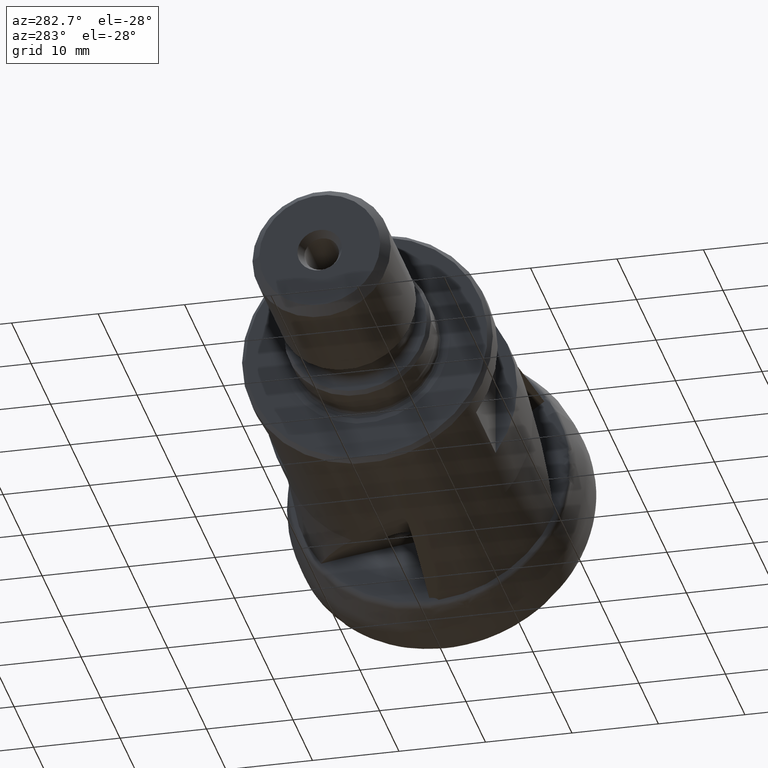
[diagram: clean part render]
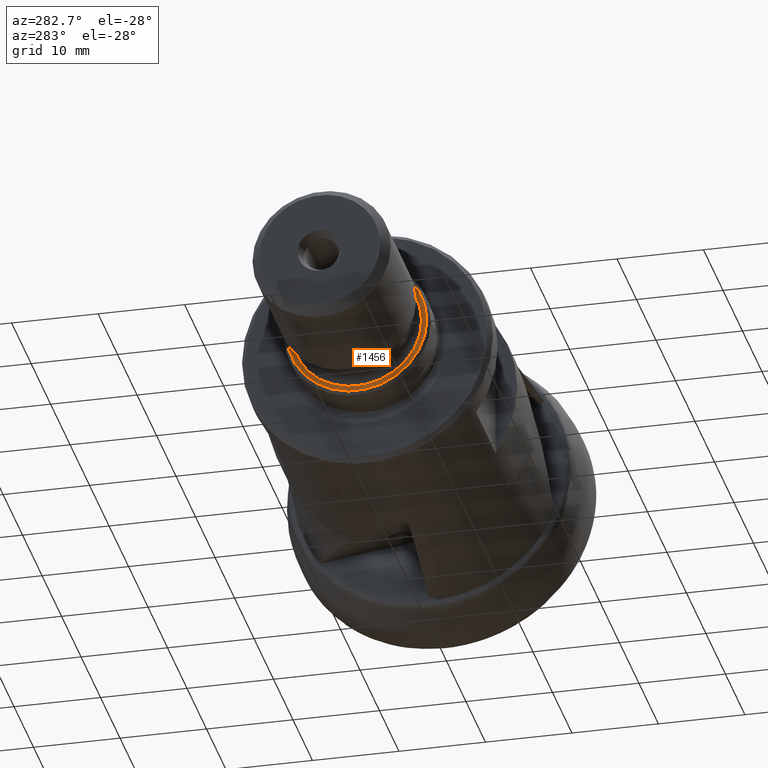
[diagram: same view with one face highlighted and labeled with its STEP entity id]
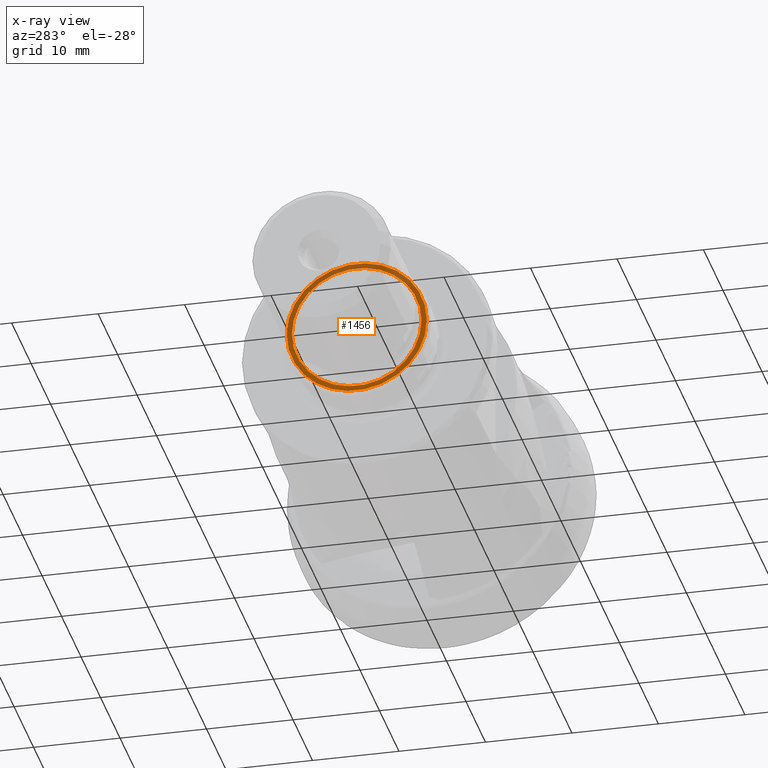
[diagram: x-ray of the same camera — body ghosted, the highlighted face saturated]
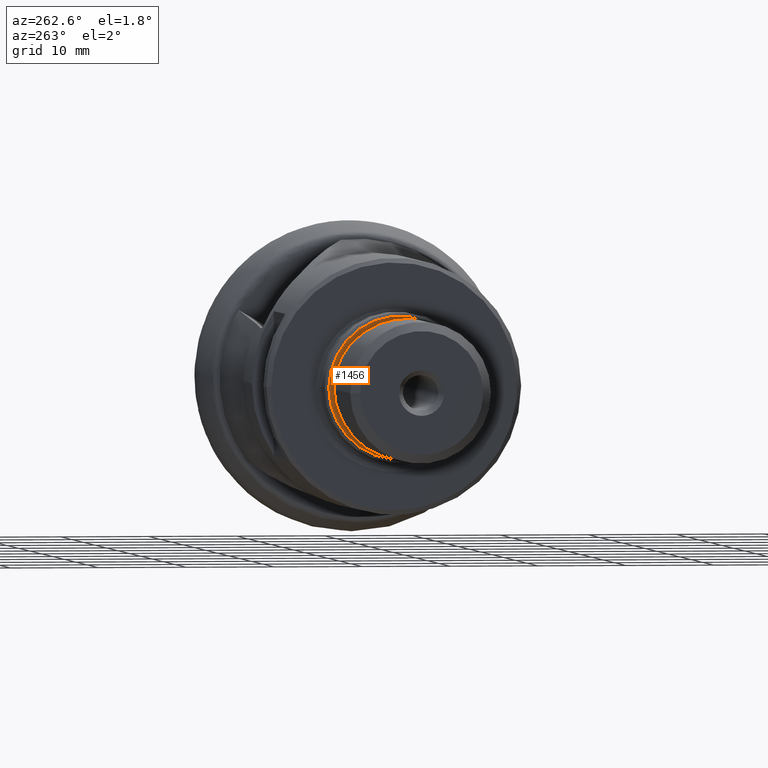
[diagram: same view with one face highlighted and labeled with its STEP entity id]
A machine part, auxiliary view. The second image highlights one B-rep face of the part: STEP entity #1456.
The next image is the same camera in x-ray: the body ghosted, the highlighted face saturated — about 42% of this face is hidden behind the body in this view.
A second angle (auxiliary view) of the same face is appended — the face is thin or edge-on in the first view.
In plain terms, the highlighted planar face has unit normal (-1, -0, 0).
Its self-contained STEP definition (entity closure, byte-faithful):
#33 = CIRCLE ( 'NONE', #3261, 8.099999999999999600 ) ;
#172 = FACE_BOUND ( 'NONE', #3444, .T. ) ;
#432 = AXIS2_PLACEMENT_3D ( 'NONE', #3369, #1136, #3741 ) ;
#441 = CARTESIAN_POINT ( 'NONE',  ( -46.04999999999999700, 8.099999999999994300, 0.0000000000000000000 ) ) ;
#631 = CARTESIAN_POINT ( 'NONE',  ( -46.04999999999999700, 7.500000000000000900, 0.0000000000000000000 ) ) ;
#863 = CIRCLE ( 'NONE', #432, 7.500000000000007100 ) ;
#1097 = EDGE_LOOP ( 'NONE', ( #2246 ) ) ;
#1136 = DIRECTION ( 'NONE',  ( 1.000000000000000000, 1.224646799147351500E-016, -0.0000000000000000000 ) ) ;
#1149 = FACE_OUTER_BOUND ( 'NONE', #1097, .T. ) ;
#1241 = ORIENTED_EDGE ( 'NONE', *, *, #3612, .T. ) ;
#1380 = DIRECTION ( 'NONE',  ( -1.000000000000000000, -1.224646799147351500E-016, 0.0000000000000000000 ) ) ;
#1433 = CARTESIAN_POINT ( 'NONE',  ( -46.04999999999999700, -5.639498510073552300E-015, 0.0000000000000000000 ) ) ;
#1456 = ADVANCED_FACE ( 'NONE', ( #172, #1149 ), #3452, .T. ) ;
#1476 = DIRECTION ( 'NONE',  ( 0.0000000000000000000, 1.000000000000000000, 0.0000000000000000000 ) ) ;
#1890 = VERTEX_POINT ( 'NONE', #441 ) ;
#2246 = ORIENTED_EDGE ( 'NONE', *, *, #2318, .F. ) ;
#2318 = EDGE_CURVE ( 'NONE', #1890, #1890, #33, .T. ) ;
#2514 = AXIS2_PLACEMENT_3D ( 'NONE', #631, #1380, #3604 ) ;
#2647 = VERTEX_POINT ( 'NONE', #4530 ) ;
#3261 = AXIS2_PLACEMENT_3D ( 'NONE', #1433, #4038, #1476 ) ;
#3369 = CARTESIAN_POINT ( 'NONE',  ( -46.04999999999999700, -5.639498510073552300E-015, 0.0000000000000000000 ) ) ;
#3444 = EDGE_LOOP ( 'NONE', ( #1241 ) ) ;
#3452 = PLANE ( 'NONE',  #2514 ) ;
#3604 = DIRECTION ( 'NONE',  ( 1.224646799147351500E-016, -1.000000000000000000, 0.0000000000000000000 ) ) ;
#3612 = EDGE_CURVE ( 'NONE', #2647, #2647, #863, .T. ) ;
#3741 = DIRECTION ( 'NONE',  ( 0.0000000000000000000, 1.000000000000000000, 0.0000000000000000000 ) ) ;
#4038 = DIRECTION ( 'NONE',  ( 1.000000000000000000, 1.224646799147351500E-016, -0.0000000000000000000 ) ) ;
#4530 = CARTESIAN_POINT ( 'NONE',  ( -46.04999999999999700, 7.500000000000000900, 0.0000000000000000000 ) ) ;